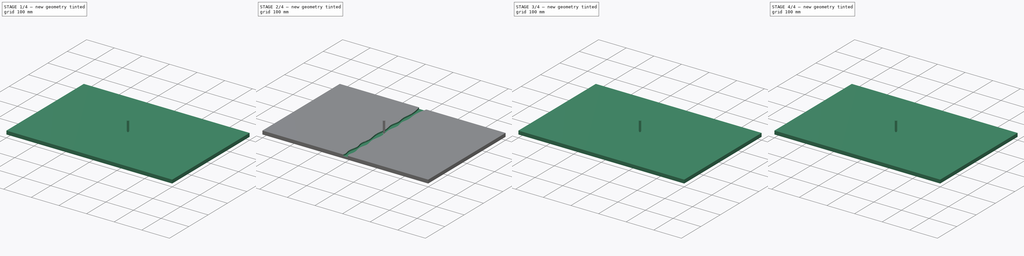
[diagram: build sequence overview — one tinted view per stage of 4, left to right]
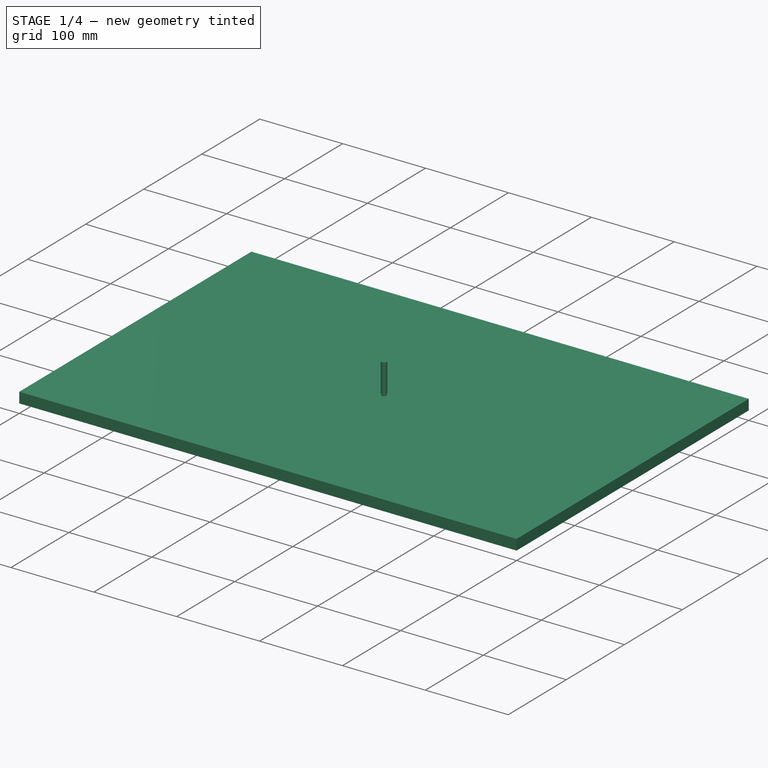
[diagram: stage 1 of 4 — iso view after this stage's code; geometry added in this stage tinted green]
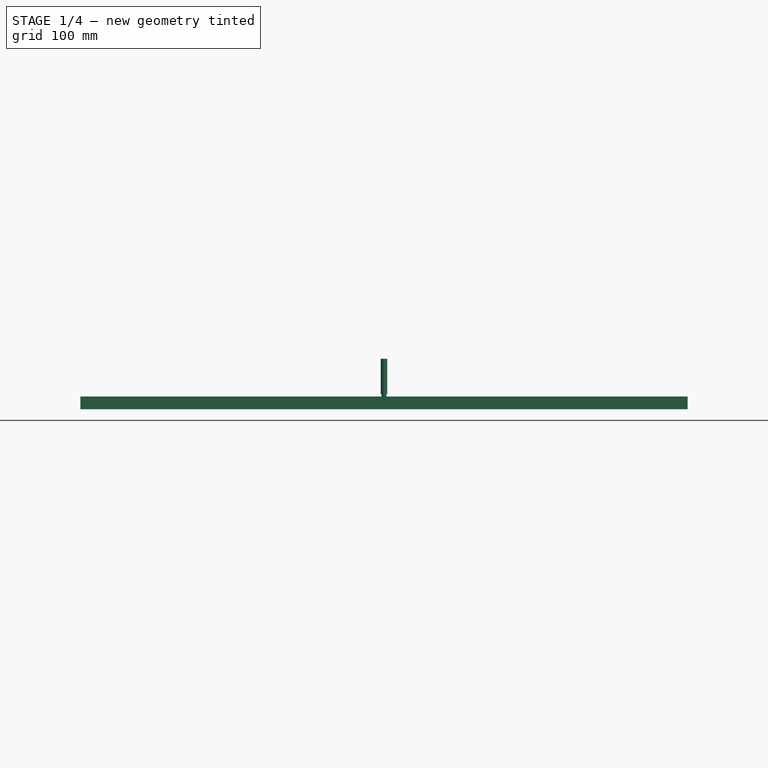
[diagram: stage 1 of 4 — front view after this stage's code; geometry added in this stage tinted green]
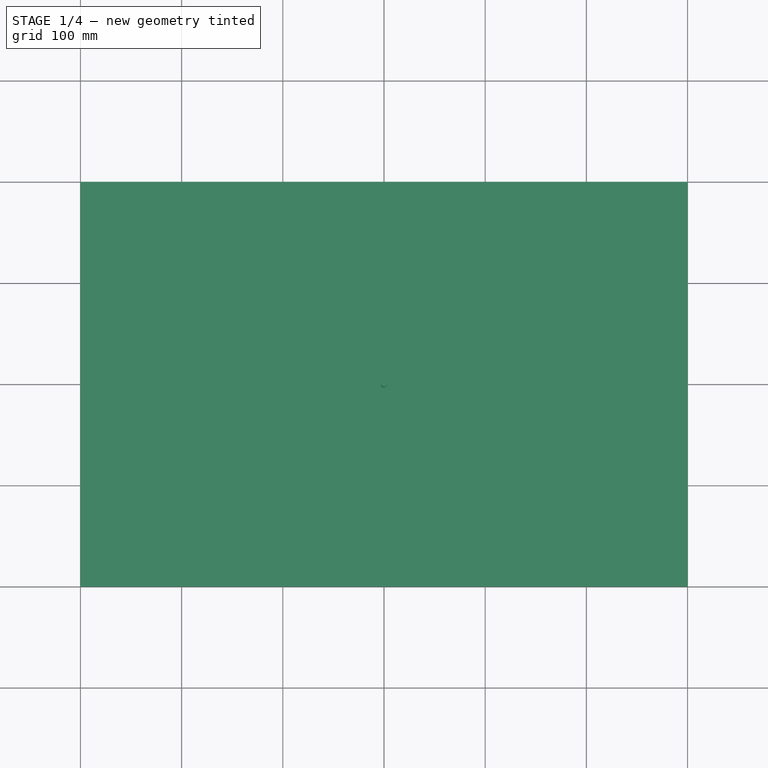
[diagram: stage 1 of 4 — top view after this stage's code; geometry added in this stage tinted green]
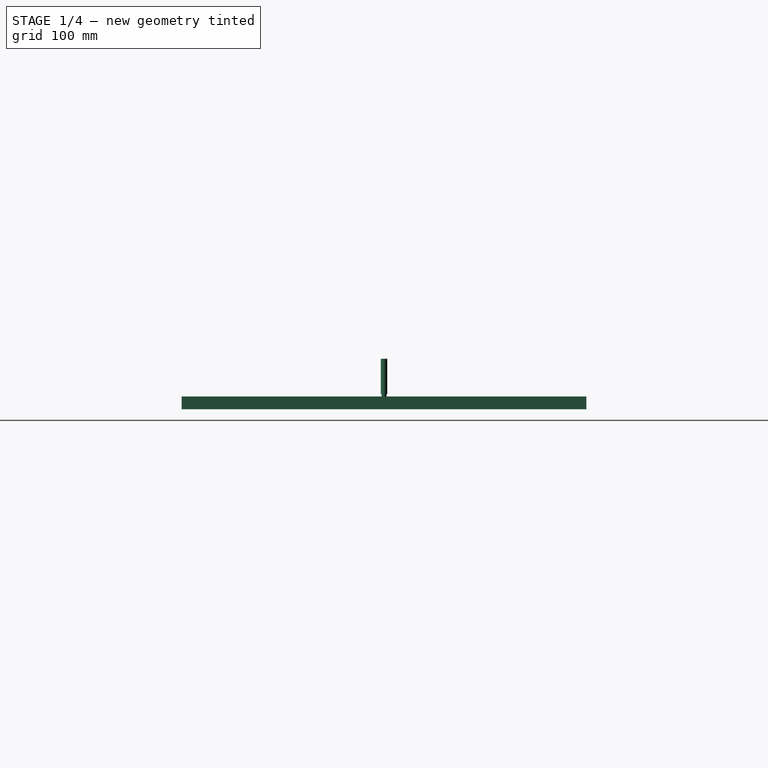
[diagram: stage 1 of 4 — right view after this stage's code; geometry added in this stage tinted green]
FCSTD DOCUMENT  (FreeCAD 0.20RUnknown)
Label: InfillWiggle
License: All rights reserved
LicenseURL: http://en.wikipedia.org/wiki/All_rights_reserved
objects: Part::FeaturePython×7, App::DocumentObjectGroup×6, Path::FeaturePython×6, Sketcher::SketchObject×2, App::FeaturePython×2, Spreadsheet::Sheet×1, PartDesign::Pad×1, PartDesign::Pocket×1, PartDesign::Body×1
note: 16 computed .brp shape members not serialized (recipe doc carries the construction recipe); baked Part::Feature solids carry a one-line shape summary decoded from their .brp

FEATURE [Sketcher::SketchObject] Sketch
  FullyConstrained = true
  MapMode = 5
  Support = -> [XY_Plane]
  expr: Constraints[10] = <<SS>>.length
  expr: Constraints[11] = <<SS>>.Width
  sketch-geometry (5):
    g0: LineSegment StartX=300 StartY=-200 StartZ=0 EndX=300 EndY=200 EndZ=0
    g1: LineSegment StartX=300 StartY=200 StartZ=0 EndX=-300 EndY=200 EndZ=0
    g2: LineSegment StartX=-300 StartY=200 StartZ=0 EndX=-300 EndY=-200 EndZ=0
    g3: LineSegment StartX=-300 StartY=-200 StartZ=0 EndX=300 EndY=-200 EndZ=0
    g4: GeomPoint X=0 Y=0 Z=0
  constraints (12):
    c: Coincident(g0,g1)
    c: Coincident(g1,g2)
    c: Coincident(g2,g3)
    c: Coincident(g3,g0)
    c: Horizontal(g1)
    c: Horizontal(g3)
    c: Vertical(g0)
    c: Vertical(g2)
    c: Symmetric(g1,g0,g4)
    c: Coincident(g4,g-1)
    c: DistanceX(g1,g1) = 600
    c: DistanceY(g2,g2) = 400
FEATURE [Spreadsheet::Sheet] Spreadsheet  label="SS"
  cells = A2=Length; B2(length)=600; A3=Width; B3(Width)=400; A4=Infill Width; B4(InfillWidth)=30; A5=Material; B5(Material)=12.7
FEATURE [PartDesign::Pad] Pad
  Direction = (0,0,1)
  Length = 12.7
  Length2 = 10
  Profile = -> Sketch
  ReferenceAxis = -> Sketch [N_Axis]
  Type = 0
  expr: Length = <<SS>>.Material
FEATURE [Part::FeaturePython] ToolBit002  label="5mm Endmill002"  # Path/CAM toolbit (typed FeaturePython)
  BitPropertyNames = Chipload | CuttingEdgeHeight | Diameter | Flutes | Length | Material | ShankDiameter | SpindleDirection
  BitShape = <path>
  Chipload = 0
  CuttingEdgeHeight = 15
  Diameter = 5
  File = <userpath>/MensShed/CNCRouter/FreeCAD/Bit/5mm_Endmill.fctb
  Flutes = 0
  Length = 50
  Material = 0
  ShankDiameter = 6.4
  ShapeName = endmill
  SpindleDirection = 0
FEATURE [Path::FeaturePython] _mm_Endmill002  label="5mm Endmill003"  # Path/CAM operation (typed FeaturePython)
  HorizFeed = 15
  HorizRapid = 0
  SpindleDir = 0
  SpindleSpeed = 12000
  Tool = -> ToolBit002
  ToolNumber = 2
  VertFeed = 5
  VertRapid = 0
  expr: HorizRapid = SetupSheet001.HorizRapid
  expr: VertRapid = SetupSheet001.VertRapid
FEATURE [App::DocumentObjectGroup] Tools001
  Group = -> [_mm_Endmill002]
FEATURE [Path::FeaturePython] Profile001  # Path/CAM operation (typed FeaturePython)
  Active = true
  AreaParams:
    Tolerance = 1e-07
    FitArcs = True
    Simplify = False
    CleanDistance = 0.0
    Accuracy = 0.01
    Unit = 1.0
    MinArcPoints = 4
    MaxArcPoints = 100
    ClipperScale = 10000000.0
    Fill = 0
    Coplanar = 0
    Reorient = True
    Outline = False
    Explode = False
    OpenMode = 0
    Deflection = 0.01
    SubjectFill = 0
    ClipFill = 0
    Offset = 2.5
    ExtraPass = 0
    Stepover = 0.0
    LastStepover = 0.0
    JoinType = 0
    EndType = 0
    MiterLimit = 2.0
    RoundPrecision = 0.0
    PocketMode = 0
    ToolRadius = 1.0
    PocketExtraOffset = 0.0
    PocketStepover = 0.0
    PocketLastStepover = 0.0
    FromCenter = False
    Angle = 45.0
    AngleShift = 0.0
    Shift = 0.0
    Thicken = False
    SectionCount = -1
    Stepdown = 1.0
    SectionOffset = 0.0
    SectionTolerance = 1e-06
    SectionMode = 2
    Project = False
  Base = -> [Clone001]
  ClearanceHeight = 19.7
  CoolantMode = 0
  CycleTime = 00:03:16
  Direction = 0
  FinalDepth = 0
  HandleMultipleFeatures = 0
  JoinType = 0
  MiterLimit = 0.1
  OffsetExtra = 0
  OpFinalDepth = 7.7
  OpStartDepth = 12.7
  OpStockZMax = 12.7
  OpStockZMin = 0
  OpToolDiameter = 5
  PathParams = {'orientation': 1, 'feedrate': 15.0, 'feedrate_v': 5.0, 'verbose': True, 'resume_height': 17.7, 'retraction': 19.7, 'return_end': True, 'preamble': False}
  SafeHeight = 17.7
  Side = 0
  SplitArcs = false
  StartDepth = 12.7
  StartPoint = (0,0,0)
  StepDown = 4
  ToolController = -> _mm_Endmill002
  UseComp = true
  UseStartPoint = false
  processCircles = false
  processHoles = false
  processPerimeter = true
  expr: ClearanceHeight = <<SS>>.Material + 7
  expr: FinalDepth = 0
  expr: SafeHeight = <<SS>>.Material + 5
  expr: StartDepth = <<SS>>.Material
  expr: StepDown = 4
FEATURE [App::DocumentObjectGroup] Operations001
  Group = -> [Profile001]
FEATURE [Path::FeaturePython] Job001  label="InlayJob"  # Path/CAM operation (typed FeaturePython)
  CycleTime = 00:03:16
  Fixtures = G54
  GeometryTolerance = 0.01
  JobType = 0
  Model = -> Model001
  Operations = -> Operations001
  OrderOutputBy = 0
  PostProcessor = 2
  PostProcessorOutputFile = %D/%d.ngc
  SetupSheet = -> SetupSheet001
  SplitOutput = false
  Stock = -> Stock002
  Tools = -> Tools001
note: 2 file-system paths scrubbed to <path> (originals preserved in the JSON sidecar)
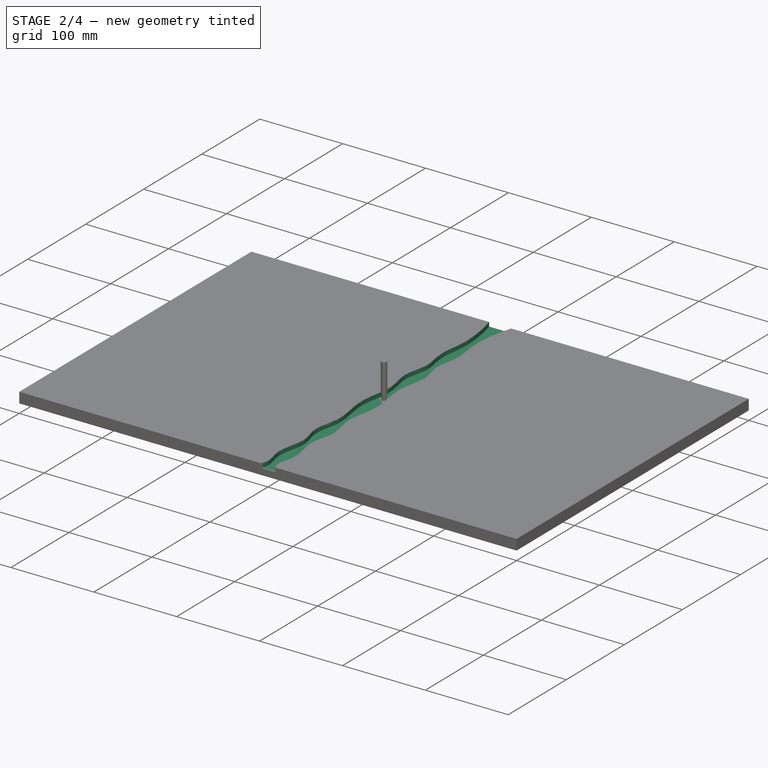
[diagram: stage 2 of 4 — iso view after this stage's code; geometry added in this stage tinted green]
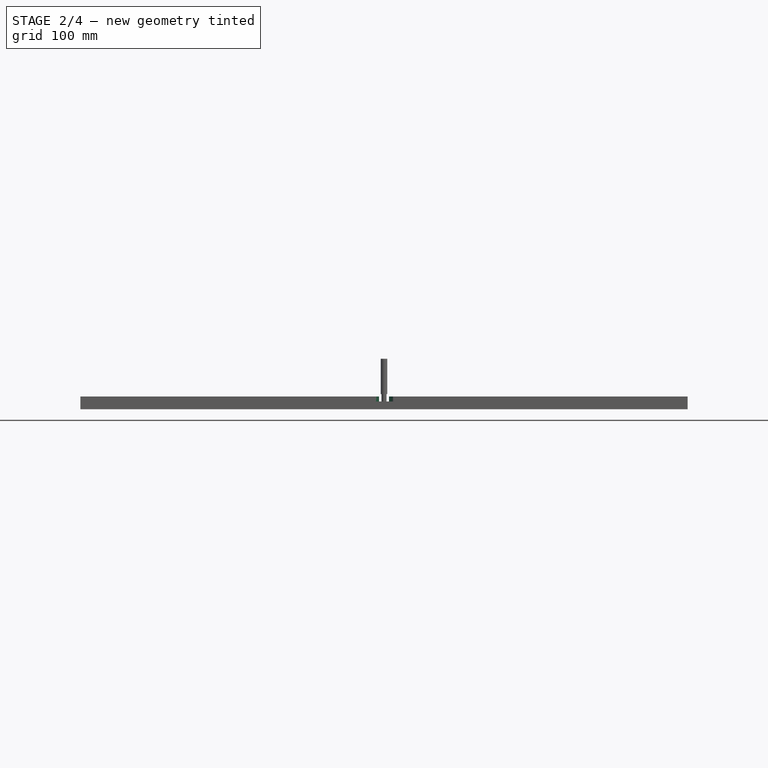
[diagram: stage 2 of 4 — front view after this stage's code; geometry added in this stage tinted green]
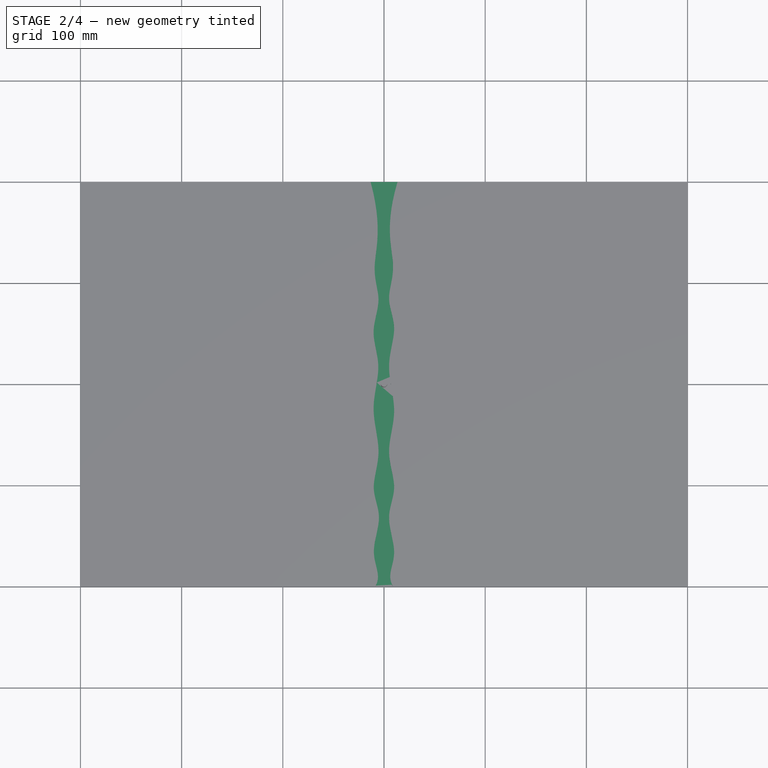
[diagram: stage 2 of 4 — top view after this stage's code; geometry added in this stage tinted green]
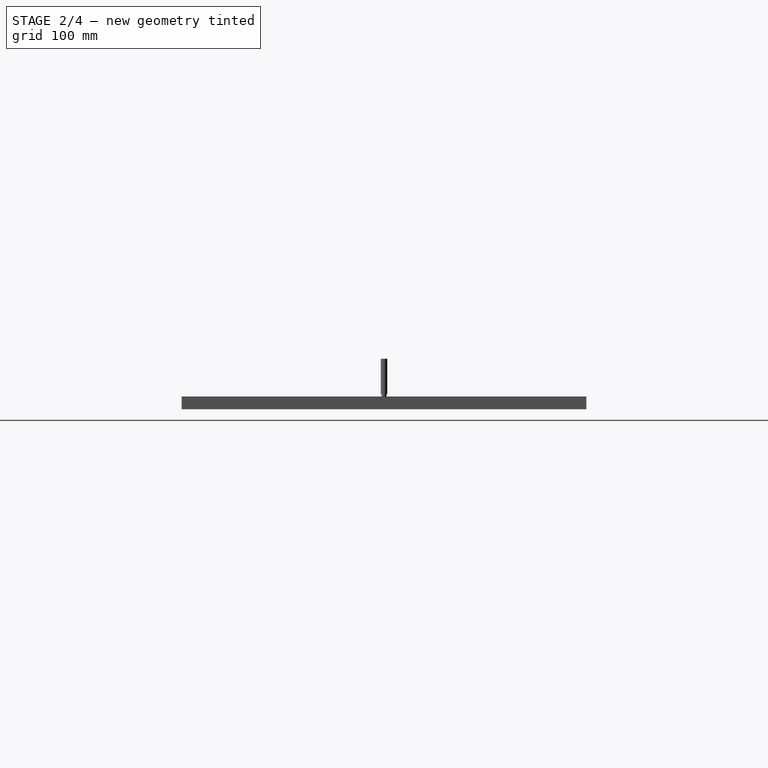
[diagram: stage 2 of 4 — right view after this stage's code; geometry added in this stage tinted green]
FEATURE [Sketcher::SketchObject] Sketch001
  FullyConstrained = false
  MapMode = 5
  Placement = pos=(0,0,12.7) rot=(0,0,1;0rad)
  Support = -> [Pad]
  expr: Constraints[10] = <<SS>>.InfillWidth
  expr: Constraints[11] = <<SS>>.Width
  sketch-geometry (63):
    g0: LineSegment StartX=15 StartY=-200 StartZ=0 EndX=15 EndY=200 EndZ=0
    g1: LineSegment StartX=15 StartY=200 StartZ=0 EndX=-15 EndY=200 EndZ=0
    g2: LineSegment StartX=-15 StartY=200 StartZ=0 EndX=-15 EndY=-200 EndZ=0
    g3: LineSegment StartX=-15 StartY=-200 StartZ=0 EndX=15 EndY=-200 EndZ=0
    g4: GeomPoint X=0 Y=0 Z=0
    g5: LineSegment StartX=-15 StartY=200 StartZ=0 EndX=15 EndY=200 EndZ=0
    g6: LineSegment StartX=-15 StartY=200 StartZ=0 EndX=15 EndY=200 EndZ=0
    g7: LineSegment StartX=-14.7421 StartY=205.371 StartZ=0 EndX=15.0068 EndY=205.371 EndZ=0
    g8: LineSegment StartX=-14.5617 StartY=-208.45 StartZ=0 EndX=15.5413 EndY=-208.45 EndZ=0
    g9-g22: Circle x14 (B-spline internal-alignment scaffolding for g23; pole/knot coordinates omitted)
    g23: BSplineCurve PolesCount=14 KnotsCount=12 Degree=3 IsPeriodic=0
    g24-g35: GeomPoint x12 (B-spline internal-alignment scaffolding for g23; pole/knot coordinates omitted)
    g36-g49: Circle x14 (B-spline internal-alignment scaffolding for g50; pole/knot coordinates omitted)
    g50: BSplineCurve PolesCount=14 KnotsCount=12 Degree=3 IsPeriodic=0
    g51-g62: GeomPoint x12 (B-spline internal-alignment scaffolding for g50; pole/knot coordinates omitted)
  constraints (72):
    c: Coincident(g0,g1)
    c: Coincident(g1,g2)
    c: Coincident(g2,g3)
    c: Coincident(g3,g0)
    c: Horizontal(g1)
    c: Horizontal(g3)
    c: Vertical(g0)
    c: Vertical(g2)
    c: Symmetric(g1,g0,g4)
    c: Coincident(g4,g-1)
    c: DistanceX(g1,g1) = 30
    c: DistanceY(g2,g2) = 400
    c: Horizontal(g7)
    c: Horizontal(g8)
    c: Weight(g9) = 1
    c: Coincident(g23,g7)
    c: Equal(g9,g10)
    c: PointOnObject(g10,g-2)
    c: Equal(g9,g11)
    c: PointOnObject(g11,g0)
    c: Equal(g9,g12)
    c: PointOnObject(g12,g-2)
    c: Equal(g9,g13)
    c: PointOnObject(g13,g0)
    c: Equal(g9,g14)
    c: PointOnObject(g14,g-2)
    c: Equal(g9,g15)
    c: PointOnObject(g15,g0)
    c: Equal(g9,g16)
    c: PointOnObject(g16,g-2)
    c: Equal(g9,g17)
    c: PointOnObject(g17,g0)
    c: Equal(g9,g18)
    c: PointOnObject(g18,g-2)
    c: Equal(g9,g19)
    c: PointOnObject(g19,g0)
    c: Equal(g9,g20)
    c: PointOnObject(g20,g-2)
    c: Equal(g9,g21)
    c: Coincident(g21,g8)
    c: Equal(g9,g22)
    c: InternalAlignment(g9-g22 -> g23) x14
    c: InternalAlignment(g24-g35 -> g23) x12
    c: Weight(g36) = 1
    c: Coincident(g50,g7)
    c: Equal(g36,g37)
    c: PointOnObject(g37,g10)
    c: Equal(g36,g38)
    c: PointOnObject(g38,g2)
    c: Equal(g36,g39)
    c: PointOnObject(g39,g12)
    c: Equal(g36,g40)
    c: PointOnObject(g40,g2)
    c: Equal(g36,g41)
    c: PointOnObject(g41,g14)
    c: Equal(g36,g42)
    c: PointOnObject(g42,g2)
    c: Equal(g36,g43)
    c: PointOnObject(g43,g16)
    c: Equal(g36,g44)
    c: PointOnObject(g44,g2)
    c: Equal(g36,g45)
    c: Coincident(g45,g18)
    c: Equal(g36,g46)
    c: PointOnObject(g46,g2)
    c: Equal(g36,g47)
    c: Coincident(g47,g20)
    c: Equal(g36,g48)
    c: Coincident(g48,g8)
    c: Equal(g36,g49)
    c: InternalAlignment(g36-g49 -> g50) x14
    c: InternalAlignment(g51-g62 -> g50) x12
FEATURE [PartDesign::Pocket] Pocket
  BaseFeature = -> Pad
  Direction = (0,0,-1)
  Length = 5
  Length2 = 5
  Profile = -> Sketch001
  ReferenceAxis = -> Sketch001 [N_Axis]
  Type = 0
FEATURE [Path::FeaturePython] _mm_Endmill  label="5mm Endmill001"  # Path/CAM operation (typed FeaturePython)
  HorizFeed = 15
  HorizRapid = 0
  SpindleDir = 0
  SpindleSpeed = 12000
  Tool = -> ToolBit001
  ToolNumber = 2
  VertFeed = 5
  VertRapid = 0
  expr: HorizRapid = SetupSheet.HorizRapid
  expr: VertRapid = SetupSheet.VertRapid
FEATURE [App::DocumentObjectGroup] Tools
  Group = -> [_mm_Endmill]
FEATURE [Path::FeaturePython] Profile  # Path/CAM operation (typed FeaturePython)
  Active = true
  AreaParams:
    Tolerance = 1e-07
    FitArcs = True
    Simplify = False
    CleanDistance = 0.0
    Accuracy = 0.01
    Unit = 1.0
    MinArcPoints = 4
    MaxArcPoints = 100
    ClipperScale = 10000000.0
    Fill = 0
    Coplanar = 0
    Reorient = True
    Outline = False
    Explode = False
    OpenMode = 0
    Deflection = 0.01
    SubjectFill = 0
    ClipFill = 0
    Offset = -2.5
    ExtraPass = 0
    Stepover = 0.0
    LastStepover = 0.0
    JoinType = 0
    EndType = 0
    MiterLimit = 2.0
    RoundPrecision = 0.0
    PocketMode = 0
    ToolRadius = 1.0
    PocketExtraOffset = 0.0
    PocketStepover = 0.0
    PocketLastStepover = 0.0
    FromCenter = False
    Angle = 45.0
    AngleShift = 0.0
    Shift = 0.0
    Thicken = False
    SectionCount = -1
    Stepdown = 1.0
    SectionOffset = 0.0
    SectionTolerance = 1e-06
    SectionMode = 2
    Project = False
  Base = -> [Clone]
  ClearanceHeight = 19.7
  CoolantMode = 0
  CycleTime = 00:03:09
  Direction = 0
  FinalDepth = 0
  HandleMultipleFeatures = 0
  JoinType = 0
  MiterLimit = 0.1
  OffsetExtra = 0
  OpFinalDepth = 7.7
  OpStartDepth = 12.7
  OpStockZMax = 12.7
  OpStockZMin = 0
  OpToolDiameter = 5
  PathParams = {'orientation': 1, 'feedrate': 15.0, 'feedrate_v': 5.0, 'verbose': True, 'resume_height': 17.7, 'retraction': 19.7, 'return_end': True, 'preamble': False}
  SafeHeight = 17.7
  Side = 1
  SplitArcs = false
  StartDepth = 12.7
  StartPoint = (0,0,0)
  StepDown = 4
  ToolController = -> _mm_Endmill
  UseComp = true
  UseStartPoint = false
  processCircles = false
  processHoles = false
  processPerimeter = true
  expr: ClearanceHeight = <<SS>>.Material + 7
  expr: FinalDepth = 0
  expr: SafeHeight = <<SS>>.Material + 5
  expr: StartDepth = <<SS>>.Material
  expr: StepDown = 4
FEATURE [App::DocumentObjectGroup] Operations
  Group = -> [Profile]
FEATURE [Path::FeaturePython] Job  label="GrooveJob"  # Path/CAM operation (typed FeaturePython)
  CycleTime = 00:03:09
  Fixtures = G54
  GeometryTolerance = 0.01
  JobType = 0
  Model = -> Model
  Operations = -> Operations
  OrderOutputBy = 0
  PostProcessor = 2
  PostProcessorOutputFile = %D/%d.ngc
  SetupSheet = -> SetupSheet
  SplitOutput = false
  Stock = -> Stock001
  Tools = -> Tools
FEATURE [App::FeaturePython] SetupSheet001  # Path/CAM operation (typed FeaturePython)
  ClearanceHeightExpression = OpStockZMax+SetupSheet001.ClearanceHeightOffset
  ClearanceHeightOffset = 5
  CoolantMode = 0
  CoolantModes = None | Flood | Mist
  FinalDepthExpression = OpFinalDepth
  HorizRapid = 0
  SafeHeightExpression = OpStockZMax+SetupSheet001.SafeHeightOffset
  SafeHeightOffset = 3
  StartDepthExpression = OpStartDepth
  StepDownExpression = OpToolDiameter
  VertRapid = 0
FEATURE [Part::FeaturePython] Clone001  label="Model-Body001"  # Draft clone (typed FeaturePython)
  AttacherType = Attacher::AttachEngine3D
  Fuse = false
  Objects = -> [Body]
  PathResource = Model
  Scale = (1,1,1)
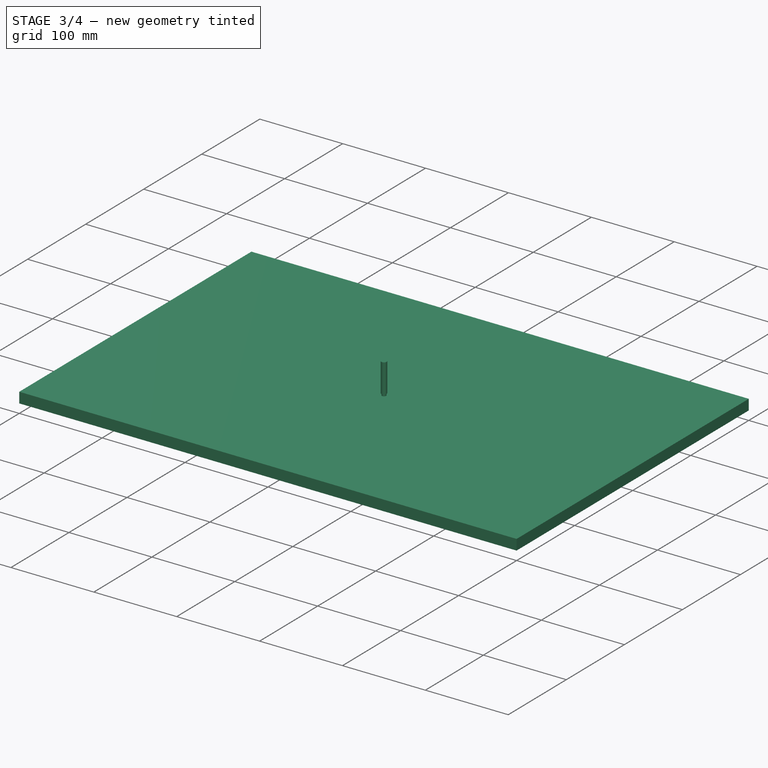
[diagram: stage 3 of 4 — iso view after this stage's code; geometry added in this stage tinted green]
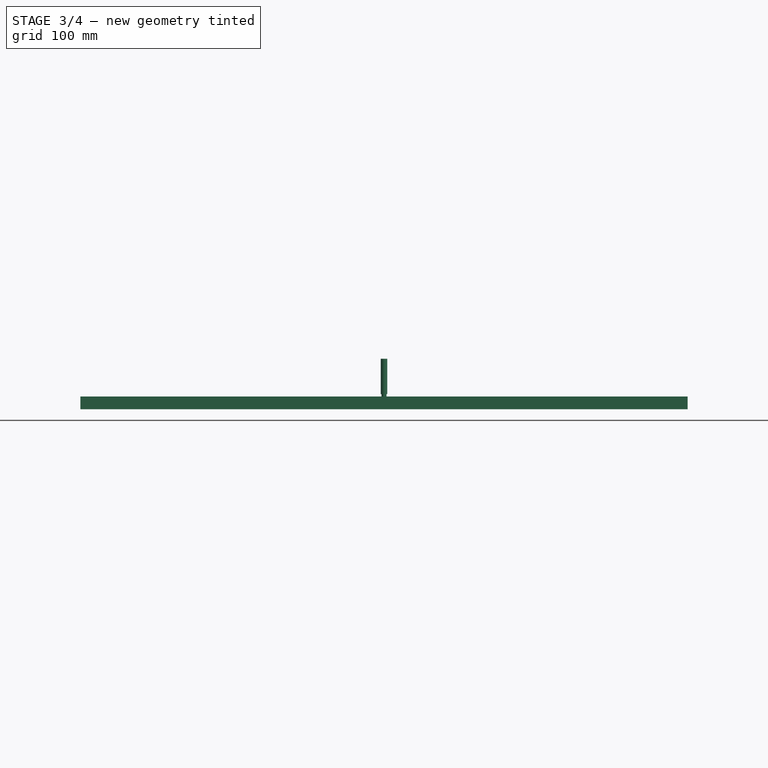
[diagram: stage 3 of 4 — front view after this stage's code; geometry added in this stage tinted green]
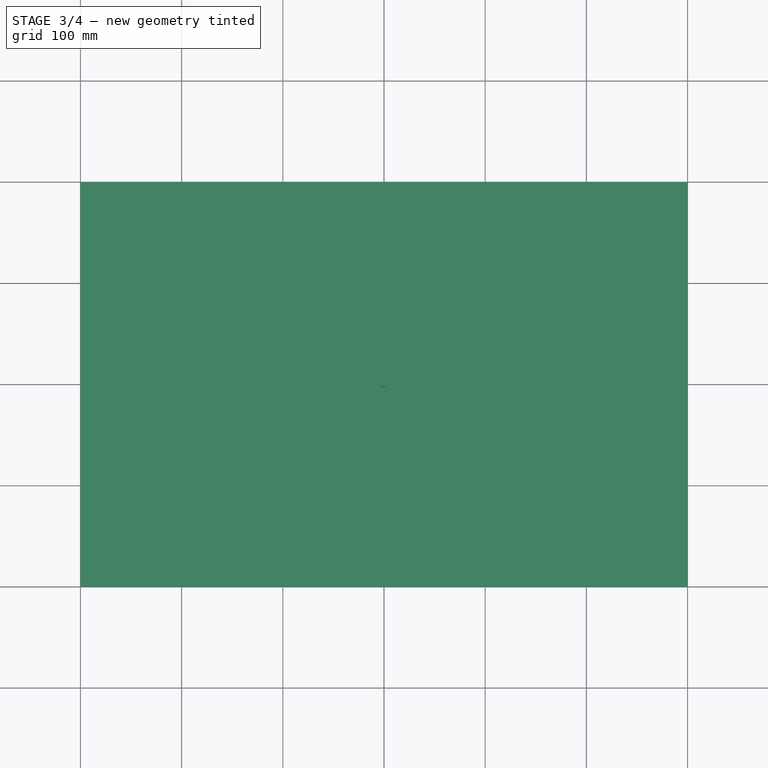
[diagram: stage 3 of 4 — top view after this stage's code; geometry added in this stage tinted green]
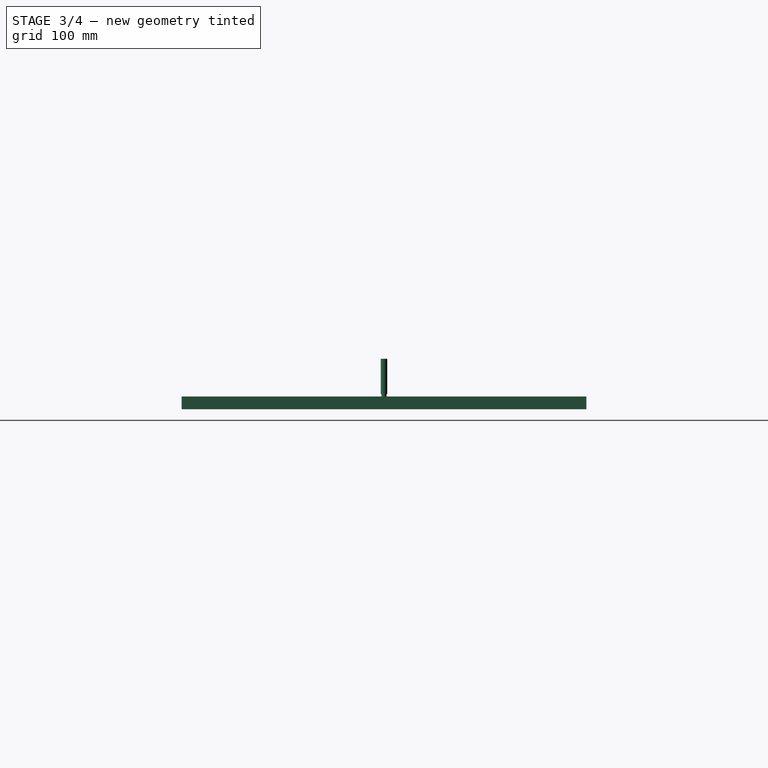
[diagram: stage 3 of 4 — right view after this stage's code; geometry added in this stage tinted green]
FEATURE [PartDesign::Body] Body
  Group = -> [Sketch,Pad,Sketch001,Pocket]
  Origin = -> Origin
  Tip = -> Pocket
FEATURE [App::FeaturePython] SetupSheet  # Path/CAM operation (typed FeaturePython)
  ClearanceHeightExpression = OpStockZMax+SetupSheet.ClearanceHeightOffset
  ClearanceHeightOffset = 5
  CoolantMode = 0
  CoolantModes = None | Flood | Mist
  FinalDepthExpression = OpFinalDepth
  HorizRapid = 0
  SafeHeightExpression = OpStockZMax+SetupSheet.SafeHeightOffset
  SafeHeightOffset = 3
  StartDepthExpression = OpStartDepth
  StepDownExpression = OpToolDiameter
  VertRapid = 0
FEATURE [Part::FeaturePython] Clone  label="Model-Body"  # Draft clone (typed FeaturePython)
  AttacherType = Attacher::AttachEngine3D
  Fuse = false
  Objects = -> [Body]
  PathResource = Model
  Scale = (1,1,1)
FEATURE [Part::FeaturePython] Clone002  label="Model-Model-Body"  # Draft clone (typed FeaturePython)
  AttacherType = Attacher::AttachEngine3D
  Fuse = false
  Objects = -> [Clone]
  PathResource = Model
  Scale = (1,1,1)
FEATURE [App::DocumentObjectGroup] Model001
  Group = -> [Clone001,Clone002]
FEATURE [Part::FeaturePython] Stock002  # WARN: FeaturePython — macro-defined, semantics opaque (R4)
  Height = 12.7
  Length = 600
  Placement = pos=(-300,-200,0) rot=(0,0,1;0rad)
  StockType = CreateBox
  Width = 400
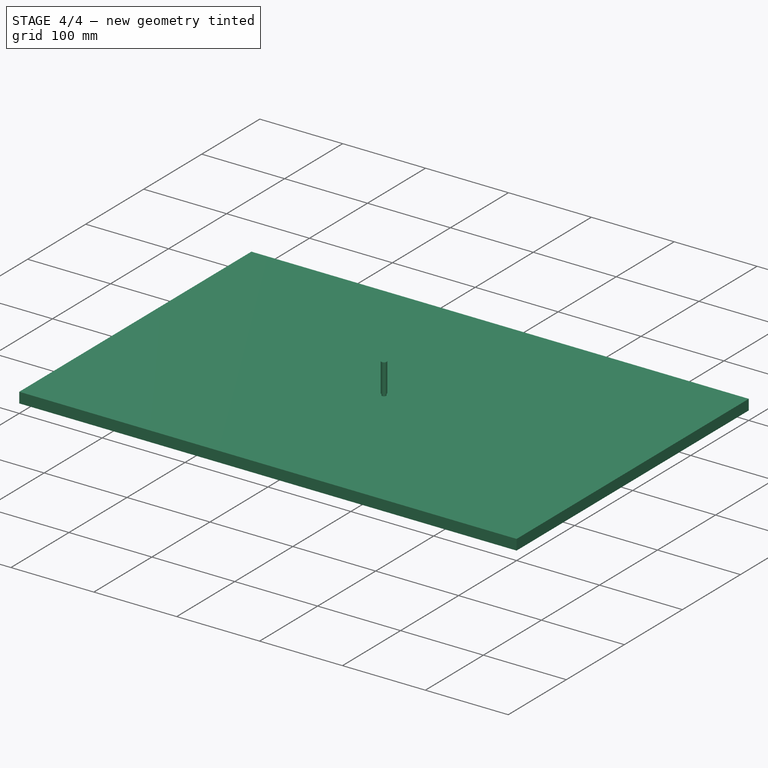
[diagram: stage 4 of 4 — iso view after this stage's code; geometry added in this stage tinted green]
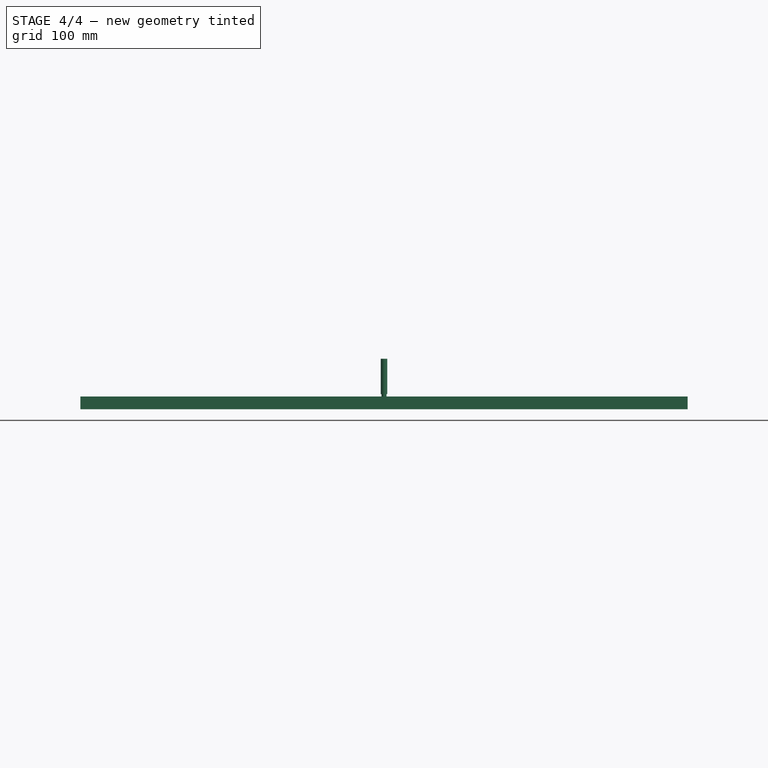
[diagram: stage 4 of 4 — front view after this stage's code; geometry added in this stage tinted green]
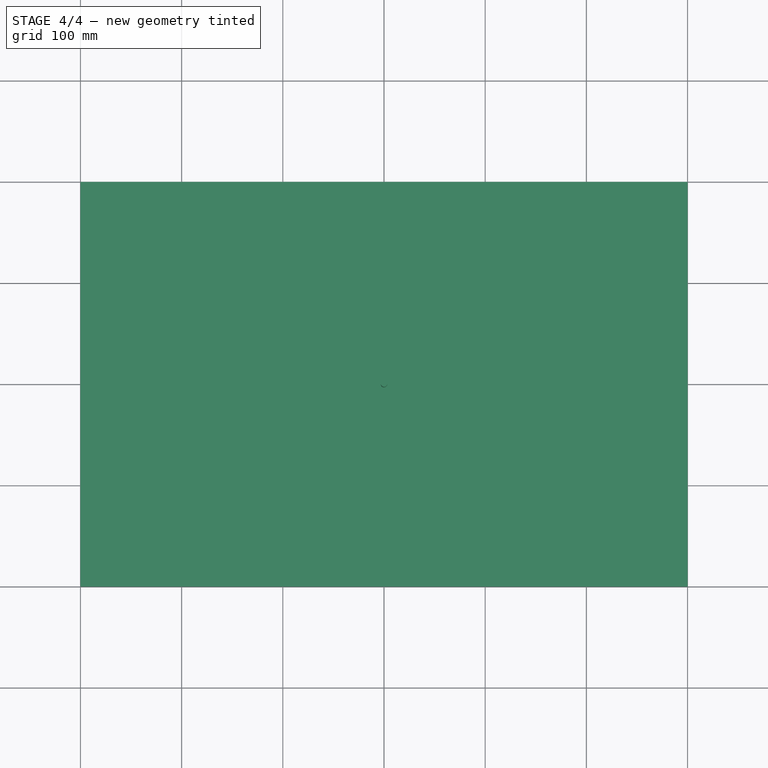
[diagram: stage 4 of 4 — top view after this stage's code; geometry added in this stage tinted green]
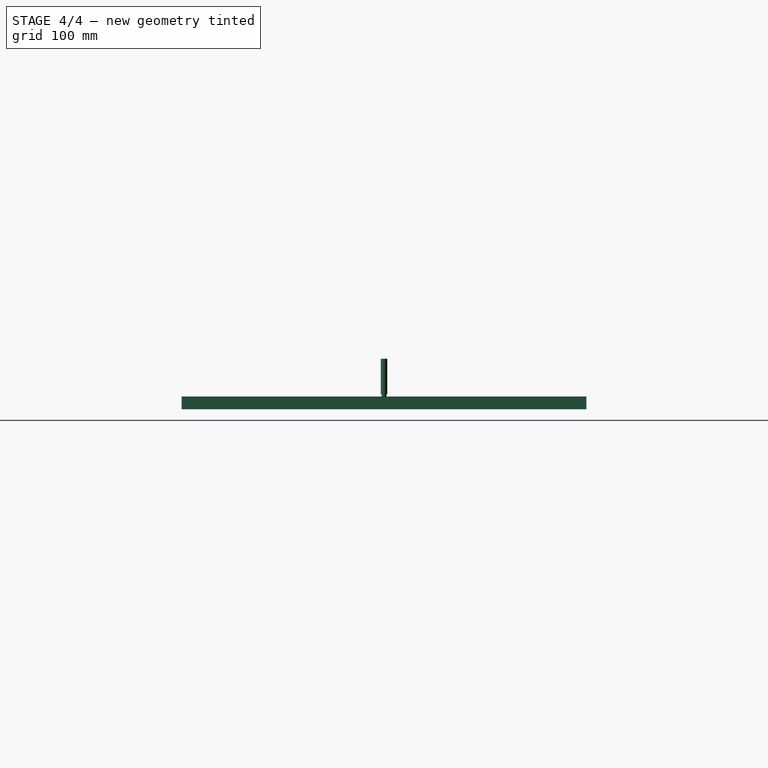
[diagram: stage 4 of 4 — right view after this stage's code; geometry added in this stage tinted green]
FEATURE [App::DocumentObjectGroup] Model
  Group = -> [Clone]
FEATURE [Part::FeaturePython] Stock001  # WARN: FeaturePython — macro-defined, semantics opaque (R4)
  Height = 12.7
  Length = 600
  Placement = pos=(-300,-200,0) rot=(0,0,1;0rad)
  StockType = CreateBox
  Width = 400
FEATURE [Part::FeaturePython] ToolBit001  label="5mm Endmill"  # Path/CAM toolbit (typed FeaturePython)
  BitPropertyNames = Chipload | CuttingEdgeHeight | Diameter | Flutes | Length | Material | ShankDiameter | SpindleDirection
  BitShape = <path>
  Chipload = 0
  CuttingEdgeHeight = 15
  Diameter = 5
  File = <userpath>/MensShed/CNCRouter/FreeCAD/Bit/5mm_Endmill.fctb
  Flutes = 0
  Length = 50
  Material = 0
  ShankDiameter = 6.4
  ShapeName = endmill
  SpindleDirection = 0
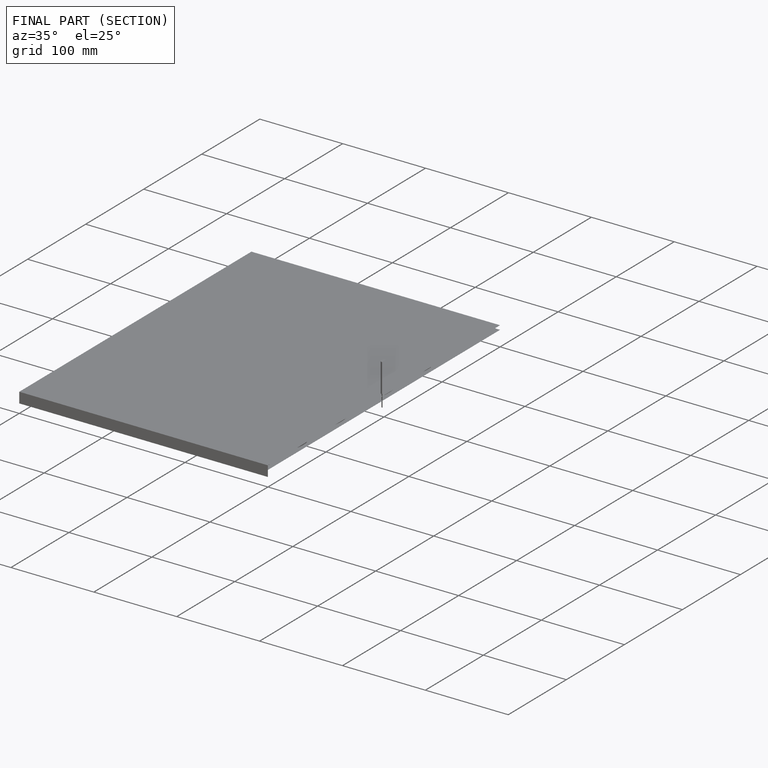
[diagram: finished part — half-section view (interior)]
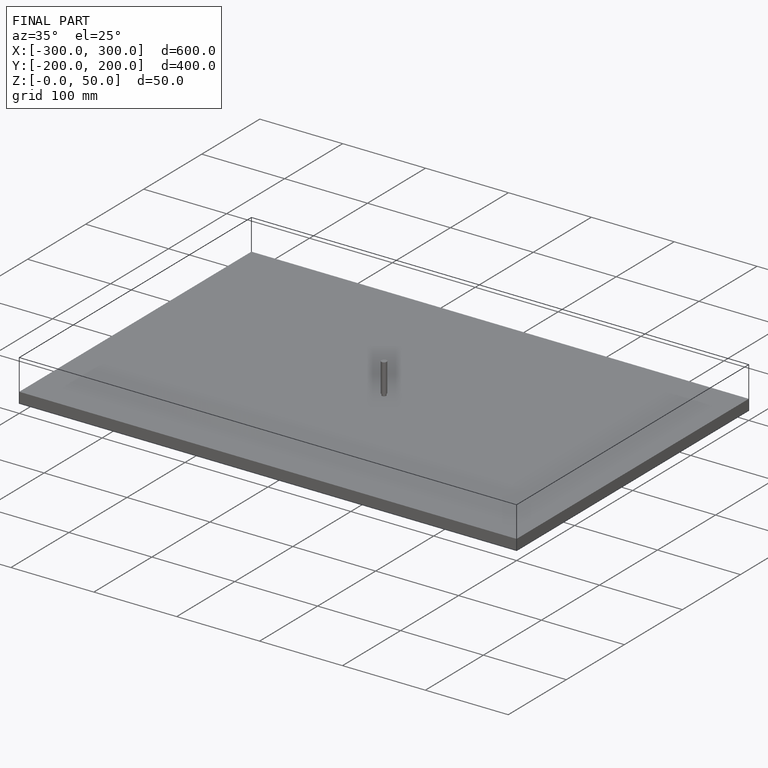
[diagram: finished part — iso view with bounding-box wireframe]
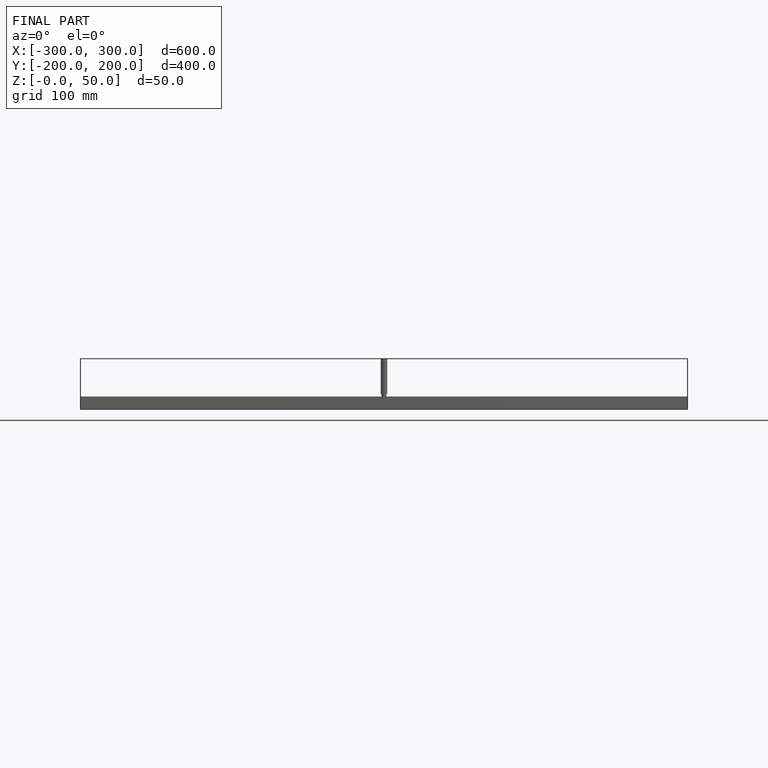
[diagram: finished part — front view with bounding-box wireframe]
